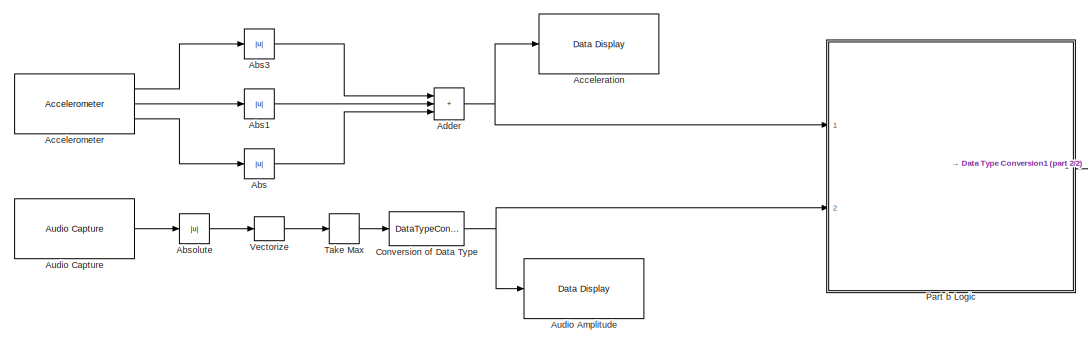
[diagram: root canvas - part 1/2, top left region]
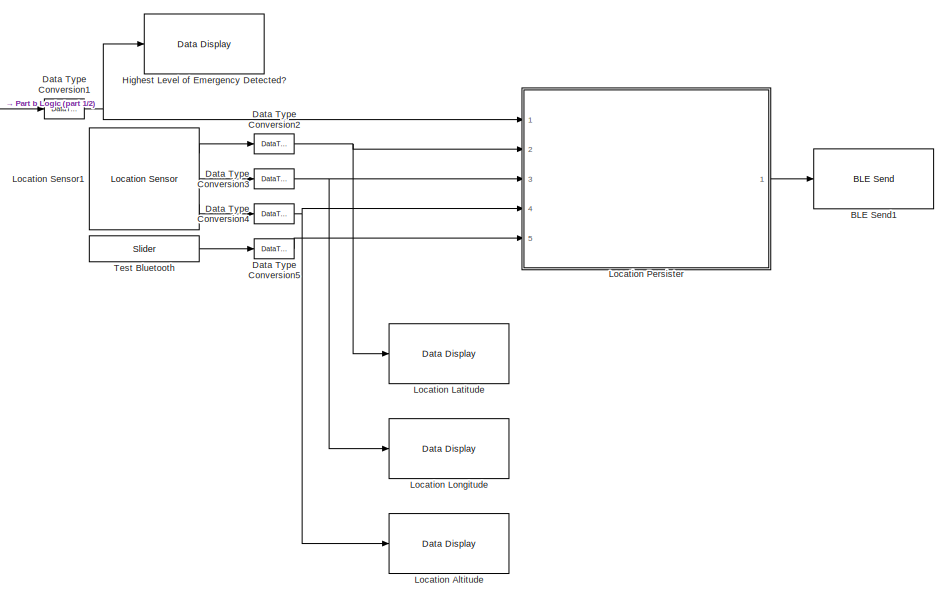
[diagram: root canvas - part 2/2, right side, full height]
MODEL slx_937b63eb7bd7
KIND model
CONFIG AbsTol = auto
CONFIG EnableMultiTasking = off
CONFIG FixedStep = auto
CONFIG MaxStep = auto
CONFIG MinStep = auto
CONFIG RelTol = 1e-3
CONFIG SampleTimeConstraint = Unconstrained
CONFIG SolverName = FixedStepDiscrete
CONFIG StartTime = 0.0
CONFIG StopTime = inf
BLOCK [Abs] Abs
  SaturateOnIntegerOverflow = off
BLOCK [Abs] Abs1
  SaturateOnIntegerOverflow = off
BLOCK [Abs] Abs3
  SaturateOnIntegerOverflow = off
BLOCK [Abs] Absolute
  SaturateOnIntegerOverflow = off
BLOCK [Reference] Acceleration  REF=androiduilib/Data Display
  Ports = [1]
  SourceBlock = androiduilib/Data Display
  SourceProductBaseCode = ANDROID
  SourceType = codertarget.internal.androidDataDisplay
BLOCK [Reference] Accelerometer  REF=androidsensorlib/Accelerometer
  Ports = [0, 3]
  SourceBlock = androidsensorlib/Accelerometer
  SourceProductBaseCode = ANDROID
  SourceType = codertarget.internal.androidAccelerometer
BLOCK [Sum] Adder
  IconShape = rectangular
  Inputs = +++
  Ports = [3, 1]
BLOCK [Reference] Audio Amplitude  REF=androiduilib/Data Display
  Ports = [1]
  SourceBlock = androiduilib/Data Display
  SourceProductBaseCode = ANDROID
  SourceType = codertarget.internal.androidDataDisplay
BLOCK [Reference] Audio Capture  REF=androidaudiovideolib/Audio Capture
  Ports = [0, 1]
  SourceBlock = androidaudiovideolib/Audio Capture
  SourceProductBaseCode = ANDROID
  SourceType = codertarget.internal.androidAudioCapture
BLOCK [Reference] BLE Send1  REF=androidcommunicationlib/BLE Send
  Ports = [1]
  SourceBlock = androidcommunicationlib/BLE Send
  SourceProductBaseCode = ANDROID
  SourceType = codertarget.internal.androidBLESend
BLOCK [DataTypeConversion] Conversion of Data Type
  OutDataTypeStr = single
  RndMeth = Floor
  SaturateOnIntegerOverflow = off
BLOCK [DataTypeConversion] Data Type Conversion1
  OutDataTypeStr = int8
  RndMeth = Floor
  SaturateOnIntegerOverflow = off
BLOCK [DataTypeConversion] Data Type Conversion2
  OutDataTypeStr = int16
  RndMeth = Floor
  SaturateOnIntegerOverflow = off
BLOCK [DataTypeConversion] Data Type Conversion3
  OutDataTypeStr = int16
  RndMeth = Floor
  SaturateOnIntegerOverflow = off
BLOCK [DataTypeConversion] Data Type Conversion4
  OutDataTypeStr = int16
  RndMeth = Floor
  SaturateOnIntegerOverflow = off
BLOCK [DataTypeConversion] Data Type Conversion5
  OutDataTypeStr = int8
  RndMeth = Floor
  SaturateOnIntegerOverflow = off
BLOCK [Reference] Highest Level of Emergency Detected?  REF=androiduilib/Data Display
  Ports = [1]
  SourceBlock = androiduilib/Data Display
  SourceProductBaseCode = ANDROID
  SourceType = codertarget.internal.androidDataDisplay
BLOCK [Reference] Location Altitude  REF=androiduilib/Data Display
  Ports = [1]
  SourceBlock = androiduilib/Data Display
  SourceProductBaseCode = ANDROID
  SourceType = codertarget.internal.androidDataDisplay
BLOCK [Reference] Location Latitude  REF=androiduilib/Data Display
  Ports = [1]
  SourceBlock = androiduilib/Data Display
  SourceProductBaseCode = ANDROID
  SourceType = codertarget.internal.androidDataDisplay
BLOCK [Reference] Location Longitude  REF=androiduilib/Data Display
  Ports = [1]
  SourceBlock = androiduilib/Data Display
  SourceProductBaseCode = ANDROID
  SourceType = codertarget.internal.androidDataDisplay
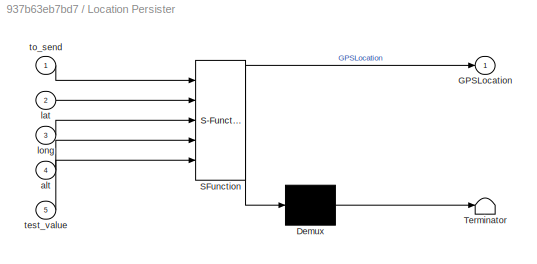
BLOCK [SubSystem] Location Persister
  ErrorFcn = Stateflow.Translate.translate
  PermitHierarchicalResolution = ExplicitOnly
  Ports = [5, 1]
  RequestExecContextInheritance = off
  SFBlockType = MATLAB Function
  TreatAsAtomicUnit = on
BLOCK [Demux] Location Persister/ Demux 
  Outputs = 1
  Ports = [1, 1]
BLOCK [S-Function] Location Persister/ SFunction 
  EnableBusSupport = on
  FunctionName = sf_sfun
  PortCounts = [5 2]
  Ports = [5, 2]
  SFcnIsStateOwnerBlock = off
  SFunctionDeploymentMode = off
  Tag = Stateflow S-Function 1
BLOCK [Terminator] Location Persister/ Terminator 
BLOCK [Outport] Location Persister/GPSLocation
  VectorParamsAs1DForOutWhenUnconnected = off
BLOCK [Inport] Location Persister/alt
  Port = 4
BLOCK [Inport] Location Persister/lat
  Port = 2
BLOCK [Inport] Location Persister/long
  Port = 3
BLOCK [Inport] Location Persister/test_value
  Port = 5
BLOCK [Inport] Location Persister/to_send
BLOCK [Reference] Location Sensor1  REF=androidsensorlib/Location Sensor
  Ports = [0, 3]
  SourceBlock = androidsensorlib/Location Sensor
  SourceProductBaseCode = ANDROID
  SourceType = codertarget.internal.androidLocation
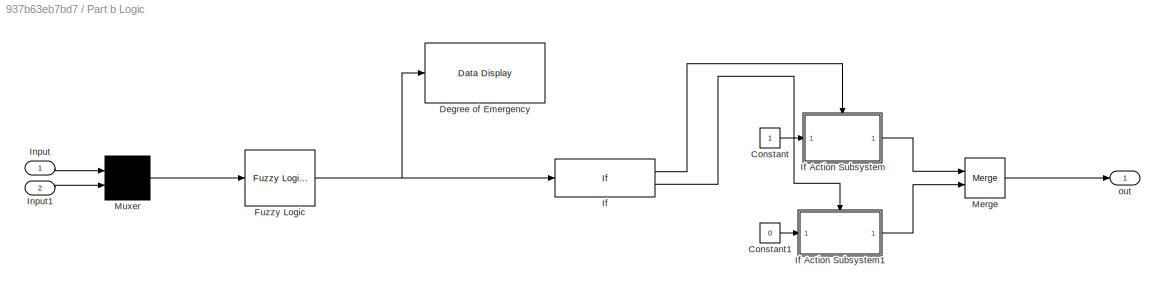
BLOCK [SubSystem] Part b Logic
  Ports = [2, 1]
  RequestExecContextInheritance = off
BLOCK [Constant] Part b Logic/Constant
BLOCK [Constant] Part b Logic/Constant1
  Value = 0
BLOCK [Reference] Part b Logic/Degree of Emergency  REF=androiduilib/Data Display
  Ports = [1]
  SourceBlock = androiduilib/Data Display
  SourceProductBaseCode = ANDROID
  SourceType = codertarget.internal.androidDataDisplay
BLOCK [Reference] Part b Logic/Fuzzy Logic  REF=fuzblock/Fuzzy Logic   (lib defined in mdl_858b3b3e7478)
Controller
  Ports = [1, 1]
  SourceBlock = fuzblock/Fuzzy Logic \nController
  SourceProductBaseCode = FL
  SourceType = Fuzzy Inference System
BLOCK [If] Part b Logic/If
  IfExpression = u1 >= 0.8
  Ports = [1, 2]
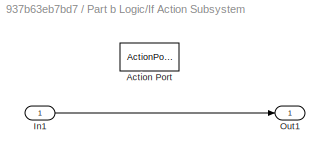
BLOCK [SubSystem] Part b Logic/If Action Subsystem
  Ports = [1, 1, 0, 0, 0, 0, 0, 1]
  RequestExecContextInheritance = off
  TreatAsAtomicUnit = on
BLOCK [ActionPort] Part b Logic/If Action Subsystem/Action Port
  ActionPortLabel = if(u1 >= 0.8)
BLOCK [Inport] Part b Logic/If Action Subsystem/In1
BLOCK [Outport] Part b Logic/If Action Subsystem/Out1
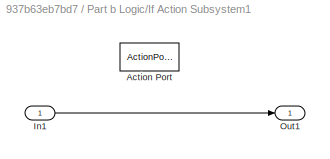
BLOCK [SubSystem] Part b Logic/If Action Subsystem1
  Ports = [1, 1, 0, 0, 0, 0, 0, 1]
  RequestExecContextInheritance = off
  TreatAsAtomicUnit = on
BLOCK [ActionPort] Part b Logic/If Action Subsystem1/Action Port
  ActionPortLabel = else
BLOCK [Inport] Part b Logic/If Action Subsystem1/In1
BLOCK [Outport] Part b Logic/If Action Subsystem1/Out1
BLOCK [Inport] Part b Logic/Input
BLOCK [Inport] Part b Logic/Input1
  Port = 2
BLOCK [Merge] Part b Logic/Merge
  Ports = [2, 1]
BLOCK [Mux] Part b Logic/Muxer
  DisplayOption = bar
  Inputs = 2
  Ports = [2, 1]
BLOCK [Outport] Part b Logic/out
BLOCK [MinMax] Take Max
  Function = max
  Ports = [1, 1]
BLOCK [Reference] Test Bluetooth  REF=androiduilib/Slider
  Ports = [0, 1]
  SourceBlock = androiduilib/Slider
  SourceProductBaseCode = ANDROID
  SourceType = codertarget.internal.androidSlider
BLOCK [Reshape] Vectorize
  Ports = [1, 1]
LINE Abs1:1 -> Adder:2
LINE Abs3:1 -> Adder:1
LINE Abs:1 -> Adder:3
LINE Absolute:1 -> Vectorize:1
LINE Accelerometer:1 -> Abs3:1
LINE Accelerometer:2 -> Abs1:1
LINE Accelerometer:3 -> Abs:1
NET Adder:1 -> Acceleration:1, Part b Logic:1
LINE Audio Capture:1 -> Absolute:1
NET Conversion of Data Type:1 -> Audio Amplitude:1, Part b Logic:2
NET Data Type Conversion1:1 -> Highest Level of Emergency Detected?:1, Location Persister:1
NET Data Type Conversion2:1 -> Location Latitude:1, Location Persister:2
NET Data Type Conversion3:1 -> Location Longitude:1, Location Persister:3
NET Data Type Conversion4:1 -> Location Altitude:1, Location Persister:4
LINE Data Type Conversion5:1 -> Location Persister:5
LINE Location Persister:1 -> BLE Send1:1
LINE Location Sensor1:1 -> Data Type Conversion2:1
LINE Location Sensor1:2 -> Data Type Conversion3:1
LINE Location Sensor1:3 -> Data Type Conversion4:1
LINE Part b Logic/Constant1:1 -> Part b Logic/If Action Subsystem1:1
LINE Part b Logic/Constant:1 -> Part b Logic/If Action Subsystem:1
NET Part b Logic/Fuzzy Logic:1 -> Part b Logic/Degree of Emergency:1, Part b Logic/If:1
LINE Part b Logic/If Action Subsystem/In1:1 -> Part b Logic/If Action Subsystem/Out1:1
LINE Part b Logic/If Action Subsystem1/In1:1 -> Part b Logic/If Action Subsystem1/Out1:1
LINE Part b Logic/If Action Subsystem1:1 -> Part b Logic/Merge:2
LINE Part b Logic/If Action Subsystem:1 -> Part b Logic/Merge:1
LINE Part b Logic/If:1 -> Part b Logic/If Action Subsystem:ifaction
LINE Part b Logic/If:2 -> Part b Logic/If Action Subsystem1:ifaction
LINE Part b Logic/Input1:1 -> Part b Logic/Muxer:2
LINE Part b Logic/Input:1 -> Part b Logic/Muxer:1
LINE Part b Logic/Merge:1 -> Part b Logic/out:1
LINE Part b Logic/Muxer:1 -> Part b Logic/Fuzzy Logic:1
LINE Part b Logic:1 -> Data Type Conversion1:1
LINE Take Max:1 -> Conversion of Data Type:1
LINE Test Bluetooth:1 -> Data Type Conversion5:1
LINE Vectorize:1 -> Take Max:1
note: NET lines group one-source signal fan-out (src -> all destinations, sorted); 1:1 wires keep LINE
CHART Location Persister states=1 transitions=1
  STATE_LABEL 'eML_blk_kernel()'
  STATE_LABEL 'SCRIPT:\nfunction GPSLocation = KeepPersistentLocation(to_send, lat, long, alt, test_value)\n\n% Reference - https://in.mathworks.com/matlabcentral/answers/11323-hold-true-value-for-finite-length-of-time\n\npersistent  lat_value long_value alt_value;\n\nif isempty(lat_value)          \n     lat_value = int16(0);\nend\n\nif isempty(long_value)     \n     long_value = int16(0);\nend\n\nif isempty(alt_value)\n     a...<+726ch>'
CHART  states=0 transitions=0
